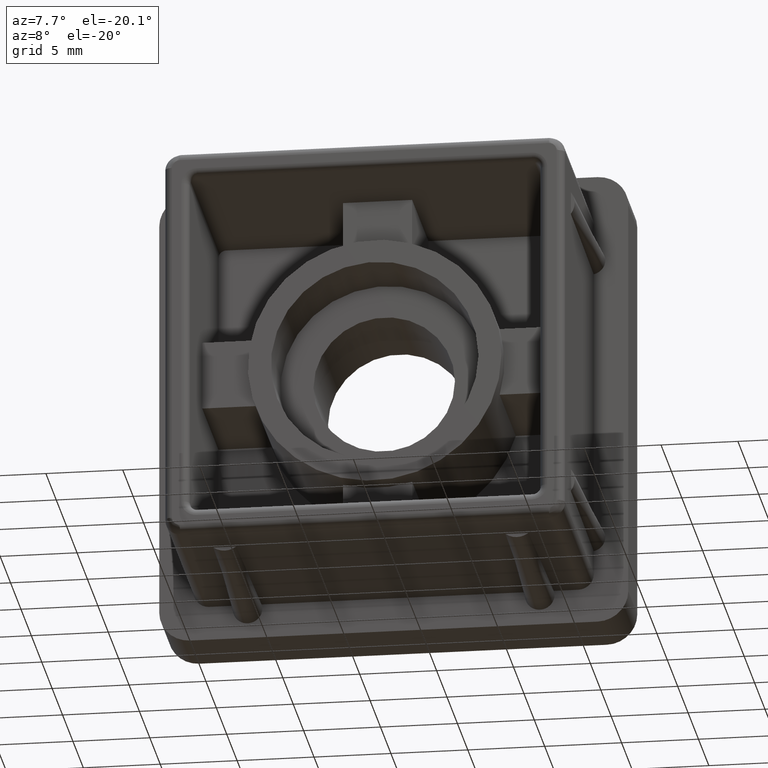
[diagram: clean part render]
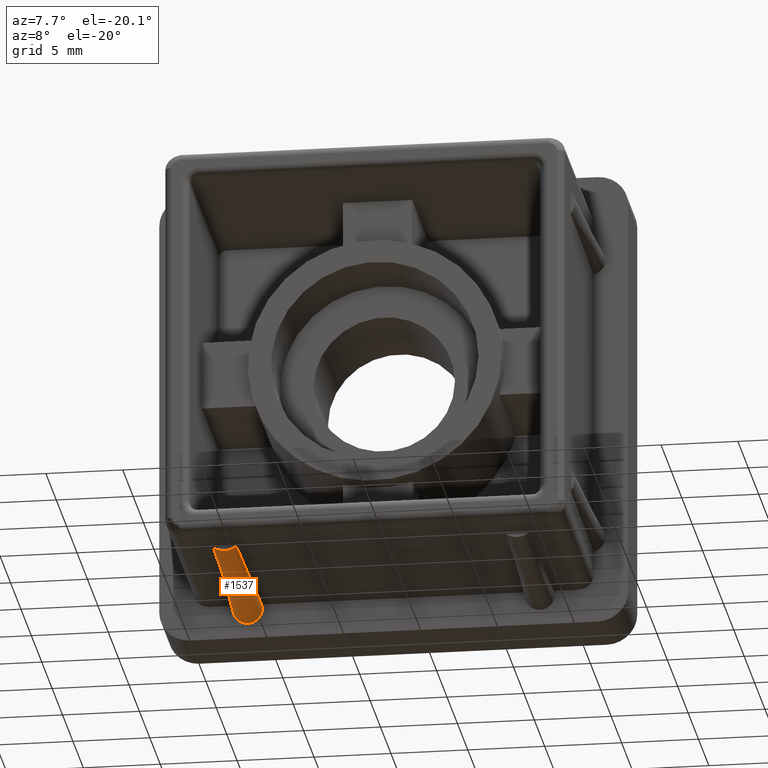
[diagram: same view with one face highlighted and labeled with its STEP entity id]
A machine part, auxiliary view. The second image highlights one B-rep face of the part: STEP entity #1537.
In plain terms, the highlighted face is a freeform B-spline surface patch.
Its self-contained STEP definition (entity closure, byte-faithful):
#18=B_SPLINE_SURFACE_WITH_KNOTS('',3,3,((#2699,#2700,#2701,#2702),(#2703,
#2704,#2705,#2706),(#2707,#2708,#2709,#2710),(#2711,#2712,#2713,#2714),
(#2715,#2716,#2717,#2718),(#2719,#2720,#2721,#2722),(#2723,#2724,#2725,
#2726),(#2727,#2728,#2729,#2730),(#2731,#2732,#2733,#2734),(#2735,#2736,
#2737,#2738),(#2739,#2740,#2741,#2742)),.UNSPECIFIED.,.F.,.F.,.F.,(4,1,
1,1,1,1,1,1,4),(4,4),(0.,0.142857142857143,0.285714285714286,0.428571428571429,
0.571428571428571,0.714285714285714,0.857142857142857,0.892857142857143,
1.),(0.,1.),.UNSPECIFIED.);
#30=B_SPLINE_CURVE_WITH_KNOTS('',3,(#2613,#2614,#2615,#2616,#2617,#2618,
#2619,#2620,#2621,#2622,#2623),.UNSPECIFIED.,.F.,.F.,(4,1,1,1,1,1,1,1,4),
(0.,0.142857142857143,0.285714285714286,0.428571428571429,0.571428571428571,
0.714285714285714,0.857142857142857,0.892857142857143,1.),.UNSPECIFIED.);
#168=LINE('',#2468,#300);
#170=LINE('',#2472,#302);
#300=VECTOR('',#1957,11.001022679733);
#302=VECTOR('',#1959,11.001022679733);
#440=FACE_OUTER_BOUND('',#534,.T.);
#534=EDGE_LOOP('',(#1333,#1334,#1335,#1336));
#643=CIRCLE('',#1689,1.25);
#747=VERTEX_POINT('',#2465);
#748=VERTEX_POINT('',#2467);
#749=VERTEX_POINT('',#2469);
#750=VERTEX_POINT('',#2471);
#923=EDGE_CURVE('',#747,#748,#168,.T.);
#925=EDGE_CURVE('',#749,#750,#170,.T.);
#975=EDGE_CURVE('',#750,#747,#30,.T.);
#982=EDGE_CURVE('',#749,#748,#643,.T.);
#1333=ORIENTED_EDGE('',*,*,#975,.F.);
#1334=ORIENTED_EDGE('',*,*,#925,.F.);
#1335=ORIENTED_EDGE('',*,*,#982,.T.);
#1336=ORIENTED_EDGE('',*,*,#923,.F.);
#1537=ADVANCED_FACE('',(#440),#18,.F.);
#1689=AXIS2_PLACEMENT_3D('',#2698,#2071,#2072);
#1957=DIRECTION('',(0.0136350959694273,-0.999907037757963,0.));
#1959=DIRECTION('',(0.0136350959694264,0.999907037757963,0.));
#2071=DIRECTION('center_axis',(0.,1.,0.));
#2072=DIRECTION('ref_axis',(-0.6,0.,0.8));
#2465=CARTESIAN_POINT('',(2.59999999999999,14.2,-13.));
#2467=CARTESIAN_POINT('',(2.75,3.2,-13.));
#2468=CARTESIAN_POINT('',(2.59999999999999,14.2,-13.));
#2469=CARTESIAN_POINT('',(4.25,3.2,-13.));
#2471=CARTESIAN_POINT('',(4.4,14.2,-13.));
#2472=CARTESIAN_POINT('',(4.4,14.2,-13.));
#2613=CARTESIAN_POINT('Ctrl Pts',(4.4,14.2,-13.));
#2614=CARTESIAN_POINT('Ctrl Pts',(4.4542816676989,14.2,-13.1623039897974));
#2615=CARTESIAN_POINT('Ctrl Pts',(4.47271870292669,14.2,-13.5168163578523));
#2616=CARTESIAN_POINT('Ctrl Pts',(4.22299871888633,14.2,-13.9872132263752));
#2617=CARTESIAN_POINT('Ctrl Pts',(3.76616042192951,14.2,-14.2611116015585));
#2618=CARTESIAN_POINT('Ctrl Pts',(3.23378973493089,14.2,-14.2614125542974));
#2619=CARTESIAN_POINT('Ctrl Pts',(2.77717212916709,14.2,-13.986942159413));
#2620=CARTESIAN_POINT('Ctrl Pts',(2.58991610063761,14.2,-13.6343903529306));
#2621=CARTESIAN_POINT('Ctrl Pts',(2.53874382153061,14.2,-13.2950902667881));
#2622=CARTESIAN_POINT('Ctrl Pts',(2.55928874922581,14.2,-13.121727992348));
#2623=CARTESIAN_POINT('Ctrl Pts',(2.59999999999999,14.2,-13.));
#2698=CARTESIAN_POINT('Origin',(3.5,3.2,-12.));
#2699=CARTESIAN_POINT('Ctrl Pts',(4.4,14.2,-13.));
#2700=CARTESIAN_POINT('Ctrl Pts',(4.35,10.5333333333333,-13.));
#2701=CARTESIAN_POINT('Ctrl Pts',(4.3,6.86666666666667,-13.));
#2702=CARTESIAN_POINT('Ctrl Pts',(4.25,3.2,-13.));
#2703=CARTESIAN_POINT('Ctrl Pts',(4.4542816676989,14.2,-13.1623039897974));
#2704=CARTESIAN_POINT('Ctrl Pts',(4.36565976086618,10.5333333333333,-13.1235795658956));
#2705=CARTESIAN_POINT('Ctrl Pts',(4.27733608694765,6.86666666666667,-13.0846887888156));
#2706=CARTESIAN_POINT('Ctrl Pts',(4.18871418011492,3.2,-13.0459643649138));
#2707=CARTESIAN_POINT('Ctrl Pts',(4.47271870292669,14.2,-13.5168163578523));
#2708=CARTESIAN_POINT('Ctrl Pts',(4.33436038252679,10.5333333333333,-13.3867400780071));
#2709=CARTESIAN_POINT('Ctrl Pts',(4.19602639988493,6.86666666666667,-13.2566675767016));
#2710=CARTESIAN_POINT('Ctrl Pts',(4.05766807948503,3.2,-13.1265912968564));
#2711=CARTESIAN_POINT('Ctrl Pts',(4.22299871888633,14.2,-13.9872132263752));
#2712=CARTESIAN_POINT('Ctrl Pts',(4.09611837182134,10.5333333333333,-13.7280614169664));
#2713=CARTESIAN_POINT('Ctrl Pts',(3.96918403041537,6.86666666666667,-13.4687155120251));
#2714=CARTESIAN_POINT('Ctrl Pts',(3.84230368335038,3.2,-13.2095637026163));
#2715=CARTESIAN_POINT('Ctrl Pts',(3.76616042192951,14.2,-14.2611116015585));
#2716=CARTESIAN_POINT('Ctrl Pts',(3.71587613328148,10.5333333333333,-13.9246065292233));
#2717=CARTESIAN_POINT('Ctrl Pts',(3.66568094023655,6.86666666666666,-13.5882558627827));
#2718=CARTESIAN_POINT('Ctrl Pts',(3.61539665158852,3.2,-13.2517507904474));
#2719=CARTESIAN_POINT('Ctrl Pts',(3.23378973493089,14.2,-14.2614125542974));
#2720=CARTESIAN_POINT('Ctrl Pts',(3.28408346054428,10.5333333333333,-13.924879025442));
#2721=CARTESIAN_POINT('Ctrl Pts',(3.33430934945245,6.86666666666667,-13.5882891832435));
#2722=CARTESIAN_POINT('Ctrl Pts',(3.38460307506583,3.2,-13.251755654388));
#2723=CARTESIAN_POINT('Ctrl Pts',(2.77717212916709,14.2,-13.986942159413));
#2724=CARTESIAN_POINT('Ctrl Pts',(2.90402068253998,10.5333333333333,-13.7278015831774));
#2725=CARTESIAN_POINT('Ctrl Pts',(3.0308484969501,6.86666666666666,-13.4686996796397));
#2726=CARTESIAN_POINT('Ctrl Pts',(3.15769705032299,3.2,-13.2095591034042));
#2727=CARTESIAN_POINT('Ctrl Pts',(2.58991610063761,14.2,-13.6343903529306));
#2728=CARTESIAN_POINT('Ctrl Pts',(2.72544486562775,10.5333333333333,-13.4720323547659));
#2729=CARTESIAN_POINT('Ctrl Pts',(2.86064595242073,6.86666666666668,-13.3096895075429));
#2730=CARTESIAN_POINT('Ctrl Pts',(2.99617471741086,3.2,-13.1473315093783));
#2731=CARTESIAN_POINT('Ctrl Pts',(2.53874382153061,14.2,-13.2950902667881));
#2732=CARTESIAN_POINT('Ctrl Pts',(2.64595797393027,10.5333333333333,-13.2221337490606));
#2733=CARTESIAN_POINT('Ctrl Pts',(2.75321271444891,6.86666666666666,-13.1491560414593));
#2734=CARTESIAN_POINT('Ctrl Pts',(2.86042686684858,3.2,-13.0761995237318));
#2735=CARTESIAN_POINT('Ctrl Pts',(2.55928874922581,14.2,-13.121727992348));
#2736=CARTESIAN_POINT('Ctrl Pts',(2.63840115360636,10.5333333333333,-13.0926277748216));
#2737=CARTESIAN_POINT('Ctrl Pts',(2.71685196053326,6.86666666666668,-13.0635734912118));
#2738=CARTESIAN_POINT('Ctrl Pts',(2.79596436491381,3.2,-13.0344732736854));
#2739=CARTESIAN_POINT('Ctrl Pts',(2.59999999999999,14.2,-13.));
#2740=CARTESIAN_POINT('Ctrl Pts',(2.65,10.5333333333333,-13.));
#2741=CARTESIAN_POINT('Ctrl Pts',(2.7,6.86666666666667,-13.));
#2742=CARTESIAN_POINT('Ctrl Pts',(2.75,3.2,-13.));